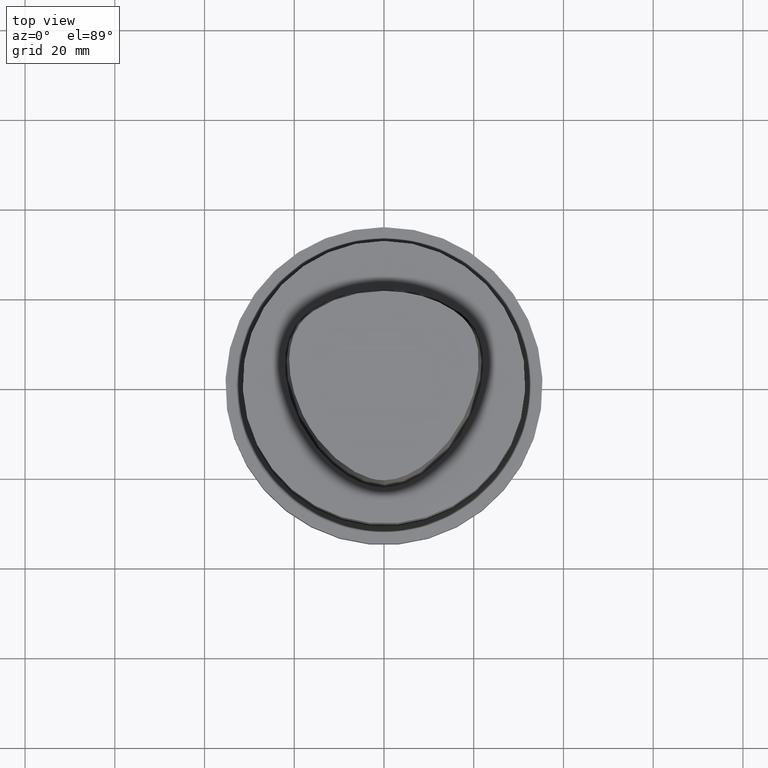
[diagram: clean part render]
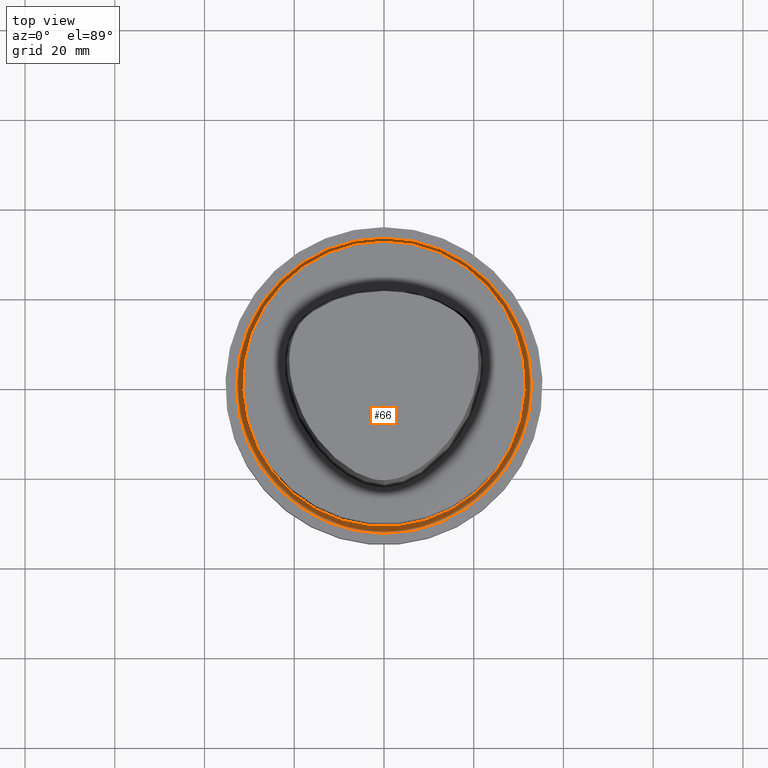
[diagram: same view with one face highlighted and labeled with its STEP entity id]
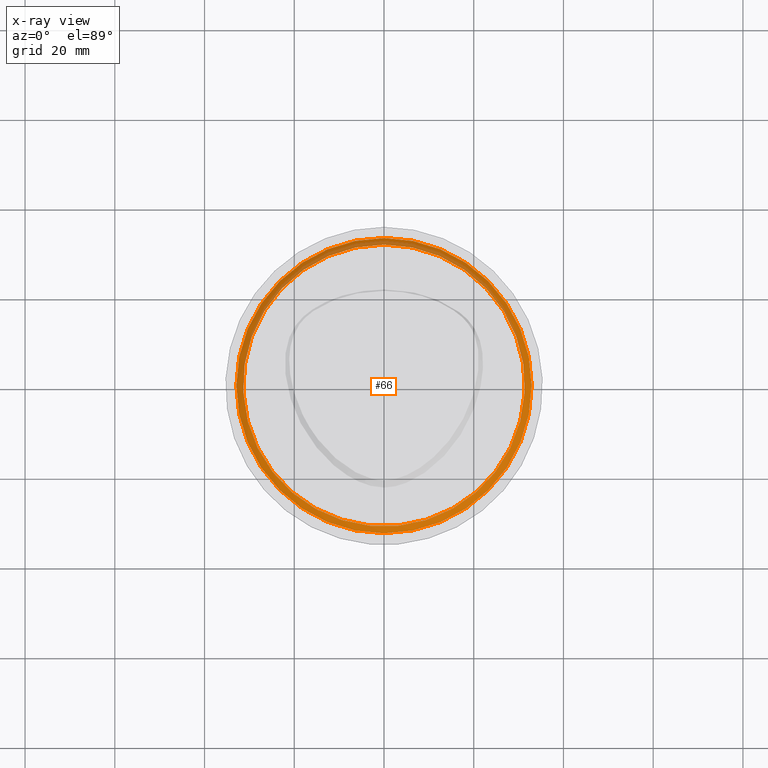
[diagram: x-ray of the same camera — body ghosted, the highlighted face saturated]
A machine part, top view. The second image highlights one B-rep face of the part: STEP entity #66.
The next image is the same camera in x-ray: the body ghosted, the highlighted face saturated — about 19% of this face is hidden behind the body in this view.
In plain terms, the highlighted conical surface has half-angle 45 deg.
Its self-contained STEP definition (entity closure, byte-faithful):
#66=ADVANCED_FACE('Unnamed[1]',(#178,#179),#180,.T.);
#103=EDGE_CURVE('Unnamed[1]',#233,#233,#234,.T.);
#119=EDGE_CURVE('Unnamed[1]',#256,#256,#257,.T.);
#178=FACE_BOUND('',#326,.T.);
#179=FACE_BOUND('',#327,.T.);
#180=CONICAL_SURFACE('',#328,32.1499999999939,0.785398163400585);
#233=VERTEX_POINT('',#502);
#234=CIRCLE('',#503,31.3999999999876);
#256=VERTEX_POINT('',#614);
#257=CIRCLE('',#615,32.9000000000001);
#326=EDGE_LOOP('',(#706));
#327=EDGE_LOOP('',(#707));
#328=AXIS2_PLACEMENT_3D('',#708,#709,#710);
#502=CARTESIAN_POINT('',(2.58400474620071E-015,31.3999999999876,-42.1999999999967));
#503=AXIS2_PLACEMENT_3D('',#753,#754,#755);
#614=CARTESIAN_POINT('',(2.67585325613695E-015,32.9000000000001,-43.6999999999998));
#615=AXIS2_PLACEMENT_3D('',#780,#781,#782);
#706=ORIENTED_EDGE('',*,*,#119,.F.);
#707=ORIENTED_EDGE('',*,*,#103,.T.);
#708=CARTESIAN_POINT('',(2.62992900116883E-015,5.25985800233767E-015,-42.9499999999982));
#709=DIRECTION('',(6.12323399573676E-017,1.22464679914735E-016,-1.0));
#710=DIRECTION('',(-1.23259516440783E-032,1.0,1.22464679914735E-016));
#753=CARTESIAN_POINT('',(2.58400474620071E-015,5.16800949240143E-015,-42.1999999999967));
#754=DIRECTION('',(6.12323399573677E-017,1.22464679914735E-016,-1.0));
#755=DIRECTION('',(-1.23259516440783E-032,1.0,1.22464679914735E-016));
#780=CARTESIAN_POINT('',(2.67585325613695E-015,5.35170651227391E-015,-43.6999999999998));
#781=DIRECTION('',(6.12323399573676E-017,1.22464679914735E-016,-1.0));
#782=DIRECTION('',(-1.23259516440783E-032,1.0,1.22464679914735E-016));